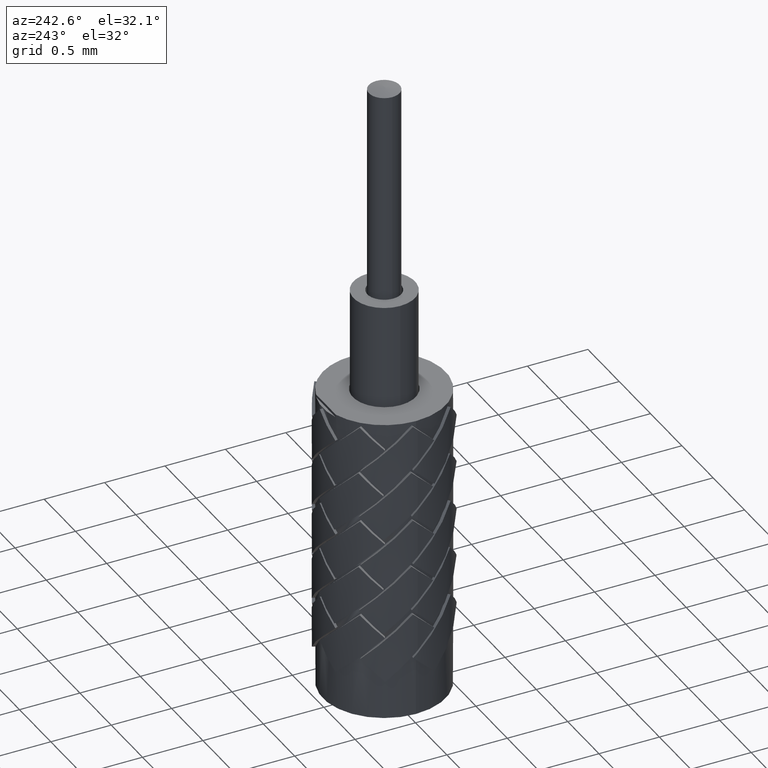
[diagram: clean part render]
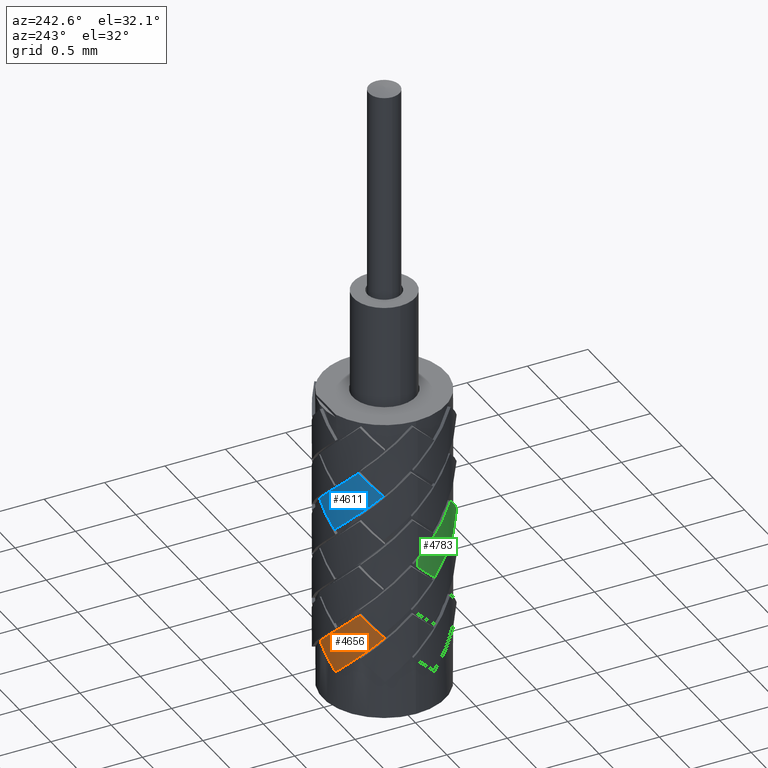
[diagram: same view with three faces highlighted in distinct colors, each labeled with its STEP entity id]
A machine part, auxiliary view with three faces highlighted in distinct colors.
Their STEP definitions:

[orange] entity #4656 — the highlighted cylindrical surface (partial cylindrical patch) has radius 0.5334 mm, axis along (0, 0, -1).
#577 = FACE_OUTER_BOUND ( 'NONE', #4589, .T. ) ;
#583 = CYLINDRICAL_SURFACE ( 'NONE', #4360, 0.02099999999999999800 ) ;
#935 = B_SPLINE_CURVE_WITH_KNOTS ( 'NONE', 3,
 ( #5617, #5668, #5489, #5478 ),
 .UNSPECIFIED., .F., .F.,
 ( 4, 4 ),
 ( 6.592916919372163500E-007, 0.9999993407083085400 ),
 .UNSPECIFIED. ) ;
#1102 = B_SPLINE_CURVE_WITH_KNOTS ( 'NONE', 3,
 ( #5851, #5492, #5888, #5835 ),
 .UNSPECIFIED., .F., .F.,
 ( 4, 4 ),
 ( 1.391942661977527500E-006, 1.000000000000000000 ),
 .UNSPECIFIED. ) ;
#1105 = B_SPLINE_CURVE_WITH_KNOTS ( 'NONE', 3,
 ( #5806, #5952, #5874, #5669 ),
 .UNSPECIFIED., .F., .F.,
 ( 4, 4 ),
 ( 6.592916918224432800E-007, 1.000000000000000000 ),
 .UNSPECIFIED. ) ;
#1313 = EDGE_CURVE ( 'NONE', #1428, #1475, #1102, .T. ) ;
#1314 = EDGE_CURVE ( 'NONE', #1402, #1428, #1105, .T. ) ;
#1333 = EDGE_CURVE ( 'NONE', #1475, #1408, #935, .T. ) ;
#1402 = VERTEX_POINT ( 'NONE', #5242 ) ;
#1408 = VERTEX_POINT ( 'NONE', #5232 ) ;
#1428 = VERTEX_POINT ( 'NONE', #5015 ) ;
#1475 = VERTEX_POINT ( 'NONE', #5406 ) ;
#1949 = DIRECTION ( 'NONE',  ( -1.000000000000000000, 0.0000000000000000000, 0.0000000000000000000 ) ) ;
#1951 = DIRECTION ( 'NONE',  ( 0.0000000000000000000, 0.0000000000000000000, -1.000000000000000000 ) ) ;
#1961 = CARTESIAN_POINT ( 'NONE',  ( 0.0000000000000000000, 0.0000000000000000000, 0.09999999999999999200 ) ) ;
#2343 = ORIENTED_EDGE ( 'NONE', *, *, #1313, .T. ) ;
#2351 = ORIENTED_EDGE ( 'NONE', *, *, #1314, .T. ) ;
#2356 = ORIENTED_EDGE ( 'NONE', *, *, #4566, .T. ) ;
#2363 = ORIENTED_EDGE ( 'NONE', *, *, #1333, .T. ) ;
#2843 = CARTESIAN_POINT ( 'NONE',  ( -0.002549479154992178300, 0.02099107324646027500, 0.01766185166687996000 ) ) ;
#2844 = CARTESIAN_POINT ( 'NONE',  ( -7.463138000601634300E-005, 0.02099986738427455500, 0.02001888411335607500 ) ) ;
#2849 = CARTESIAN_POINT ( 'NONE',  ( -0.005022125999315830300, 0.02054028360191250900, 0.01530482906292478900 ) ) ;
#2850 = CARTESIAN_POINT ( 'NONE',  ( -0.007340874858266370100, 0.01967515073170400500, 0.01294781630149058000 ) ) ;
#4360 = AXIS2_PLACEMENT_3D ( 'NONE', #1961, #1951, #1949 ) ;
#4566 = EDGE_CURVE ( 'NONE', #1408, #1402, #6784, .T. ) ;
#4589 = EDGE_LOOP ( 'NONE', ( #2363, #2356, #2351, #2343 ) ) ;
#4656 = ADVANCED_FACE ( 'NONE', ( #577 ), #583, .T. ) ;
#5015 = CARTESIAN_POINT ( 'NONE',  ( -0.01874907956769011500, 0.009458964814630876900, 0.02787674848962505600 ) ) ;
#5232 = CARTESIAN_POINT ( 'NONE',  ( -7.463138000601634300E-005, 0.02099986738427455500, 0.02001888411335607500 ) ) ;
#5242 = CARTESIAN_POINT ( 'NONE',  ( -0.007340874858266370100, 0.01967515073170400500, 0.01294781630149058000 ) ) ;
#5406 = CARTESIAN_POINT ( 'NONE',  ( -0.01431440639874261900, 0.01536547329084386900, 0.03494779661644865900 ) ) ;
#5478 = CARTESIAN_POINT ( 'NONE',  ( -7.463138000601634300E-005, 0.02099986738427455500, 0.02001888411335607500 ) ) ;
#5489 = CARTESIAN_POINT ( 'NONE',  ( -0.005299717759279109000, 0.02098129796190630800, 0.02499518828105360600 ) ) ;
#5492 = CARTESIAN_POINT ( 'NONE',  ( -0.01763433142545270400, 0.01166856195621402900, 0.03023376781273990800 ) ) ;
#5617 = CARTESIAN_POINT ( 'NONE',  ( -0.01431440639874261900, 0.01536547329084386900, 0.03494779661644865900 ) ) ;
#5668 = CARTESIAN_POINT ( 'NONE',  ( -0.01049124295994900500, 0.01892711530185286000, 0.02997149244875112500 ) ) ;
#5669 = CARTESIAN_POINT ( 'NONE',  ( -0.01874907956769011500, 0.009458964814630876900, 0.02787674848962505600 ) ) ;
#5806 = CARTESIAN_POINT ( 'NONE',  ( -0.007340874858266370100, 0.01967515073170400500, 0.01294781630149058000 ) ) ;
#5835 = CARTESIAN_POINT ( 'NONE',  ( -0.01431440639874261900, 0.01536547329084386900, 0.03494779661644865900 ) ) ;
#5851 = CARTESIAN_POINT ( 'NONE',  ( -0.01874907956769011500, 0.009458964814630876900, 0.02787674848962505600 ) ) ;
#5874 = CARTESIAN_POINT ( 'NONE',  ( -0.01639555066536298200, 0.01412401596125133400, 0.02290043119856626300 ) ) ;
#5888 = CARTESIAN_POINT ( 'NONE',  ( -0.01612524900305628200, 0.01367849873115271900, 0.03259078713585476100 ) ) ;
#5952 = CARTESIAN_POINT ( 'NONE',  ( -0.01223635481513059100, 0.01784862821990523100, 0.01792412375002842100 ) ) ;
#6784 = B_SPLINE_CURVE_WITH_KNOTS ( 'NONE', 3,
 ( #2844, #2843, #2849, #2850 ),
 .UNSPECIFIED., .F., .F.,
 ( 4, 4 ),
 ( 0.0000000000000000000, 1.000000000000000000 ),
 .UNSPECIFIED. ) ;

[blue] entity #4611 — the highlighted cylindrical surface (partial cylindrical patch) has radius 0.5334 mm, axis along (0, 0, -1).
#370 = EDGE_LOOP ( 'NONE', ( #3247, #3235, #3236, #3234 ) ) ;
#520 = FACE_OUTER_BOUND ( 'NONE', #370, .T. ) ;
#529 = CYLINDRICAL_SURFACE ( 'NONE', #1371, 0.02099999999999999800 ) ;
#973 = B_SPLINE_CURVE_WITH_KNOTS ( 'NONE', 3,
 ( #5948, #5336, #5925, #5899 ),
 .UNSPECIFIED., .F., .F.,
 ( 4, 4 ),
 ( 0.0000000000000000000, 0.9999986080573375300 ),
 .UNSPECIFIED. ) ;
#1027 = B_SPLINE_CURVE_WITH_KNOTS ( 'NONE', 3,
 ( #2419, #2423, #2414, #2411 ),
 .UNSPECIFIED., .F., .F.,
 ( 4, 4 ),
 ( 0.0000000000000000000, 1.000000000000000000 ),
 .UNSPECIFIED. ) ;
#1108 = B_SPLINE_CURVE_WITH_KNOTS ( 'NONE', 3,
 ( #5975, #5974, #5584, #5647 ),
 .UNSPECIFIED., .F., .F.,
 ( 4, 4 ),
 ( 1.391942662088818300E-006, 0.9999986080573370900 ),
 .UNSPECIFIED. ) ;
#1141 = B_SPLINE_CURVE_WITH_KNOTS ( 'NONE', 3,
 ( #5709, #5800, #5549, #5922 ),
 .UNSPECIFIED., .F., .F.,
 ( 4, 4 ),
 ( 0.0000000000000000000, 0.9999993407083082000 ),
 .UNSPECIFIED. ) ;
#1171 = DIRECTION ( 'NONE',  ( -1.000000000000000000, 0.0000000000000000000, 0.0000000000000000000 ) ) ;
#1172 = DIRECTION ( 'NONE',  ( 0.0000000000000000000, 0.0000000000000000000, -1.000000000000000000 ) ) ;
#1180 = CARTESIAN_POINT ( 'NONE',  ( 0.0000000000000000000, 0.0000000000000000000, 0.09999999999999999200 ) ) ;
#1304 = EDGE_CURVE ( 'NONE', #1490, #1489, #1027, .T. ) ;
#1325 = EDGE_CURVE ( 'NONE', #1486, #1490, #973, .T. ) ;
#1371 = AXIS2_PLACEMENT_3D ( 'NONE', #1180, #1172, #1171 ) ;
#1466 = VERTEX_POINT ( 'NONE', #5466 ) ;
#1486 = VERTEX_POINT ( 'NONE', #5404 ) ;
#1489 = VERTEX_POINT ( 'NONE', #5924 ) ;
#1490 = VERTEX_POINT ( 'NONE', #6001 ) ;
#2411 = CARTESIAN_POINT ( 'NONE',  ( -0.01855139944125968500, 0.009841015129082456400, 0.07627323738815886000 ) ) ;
#2414 = CARTESIAN_POINT ( 'NONE',  ( -0.01610280909712933800, 0.01445688360869843600, 0.07129691681625971400 ) ) ;
#2419 = CARTESIAN_POINT ( 'NONE',  ( -0.006936311913480125400, 0.01982139190467999500, 0.06134430520002431800 ) ) ;
#2423 = CARTESIAN_POINT ( 'NONE',  ( -0.01186819107908363700, 0.01809552389416798500, 0.06632060608688153400 ) ) ;
#3234 = ORIENTED_EDGE ( 'NONE', *, *, #1304, .T. ) ;
#3235 = ORIENTED_EDGE ( 'NONE', *, *, #3436, .T. ) ;
#3236 = ORIENTED_EDGE ( 'NONE', *, *, #1325, .T. ) ;
#3247 = ORIENTED_EDGE ( 'NONE', *, *, #3445, .T. ) ;
#3436 = EDGE_CURVE ( 'NONE', #1466, #1486, #1141, .T. ) ;
#3445 = EDGE_CURVE ( 'NONE', #1489, #1466, #1108, .T. ) ;
#4611 = ADVANCED_FACE ( 'NONE', ( #520 ), #529, .T. ) ;
#5336 = CARTESIAN_POINT ( 'NONE',  ( -0.002118983633466113800, 0.02103888997332837100, 0.06605834384625398900 ) ) ;
#5404 = CARTESIAN_POINT ( 'NONE',  ( 0.0003555216136105874400, 0.02099699036486552700, 0.06841537301188978200 ) ) ;
#5466 = CARTESIAN_POINT ( 'NONE',  ( -0.01399668987278623200, 0.01565543588039130000, 0.08334428551498239400 ) ) ;
#5549 = CARTESIAN_POINT ( 'NONE',  ( -0.004868852363867298200, 0.02108544960756185400, 0.07339168046042764100 ) ) ;
#5584 = CARTESIAN_POINT ( 'NONE',  ( -0.01584169554873035900, 0.01400591475194636800, 0.08098726947270787300 ) ) ;
#5647 = CARTESIAN_POINT ( 'NONE',  ( -0.01399668987278623200, 0.01565543588039130000, 0.08334428551498239400 ) ) ;
#5709 = CARTESIAN_POINT ( 'NONE',  ( -0.01399668987278623200, 0.01565543588039130000, 0.08334428551498239400 ) ) ;
#5800 = CARTESIAN_POINT ( 'NONE',  ( -0.01010136734537827800, 0.01913803245498062900, 0.07836798790896550000 ) ) ;
#5899 = CARTESIAN_POINT ( 'NONE',  ( -0.006936311913480125400, 0.01982139190467999500, 0.06134430520002431800 ) ) ;
#5922 = CARTESIAN_POINT ( 'NONE',  ( 0.0003555216136105874400, 0.02099699036486552700, 0.06841537301188978200 ) ) ;
#5924 = CARTESIAN_POINT ( 'NONE',  ( -0.01855139944125968500, 0.009841015129082456400, 0.07627323738815886000 ) ) ;
#5925 = CARTESIAN_POINT ( 'NONE',  ( -0.004600341726961976700, 0.02063884296524121400, 0.06370132452313914700 ) ) ;
#5948 = CARTESIAN_POINT ( 'NONE',  ( 0.0003555216136105874400, 0.02099699036486552700, 0.06841537301188978200 ) ) ;
#5974 = CARTESIAN_POINT ( 'NONE',  ( -0.01739162791468400200, 0.01202731243356704000, 0.07863025343043336700 ) ) ;
#5975 = CARTESIAN_POINT ( 'NONE',  ( -0.01855139944125968500, 0.009841015129082456400, 0.07627323738815886000 ) ) ;
#6001 = CARTESIAN_POINT ( 'NONE',  ( -0.006936311913480125400, 0.01982139190467999500, 0.06134430520002431800 ) ) ;

[green] entity #4783 — the highlighted cylindrical surface (partial cylindrical patch) has radius 0.5334 mm, axis along (0, 0, -1).
#174 = ORIENTED_EDGE ( 'NONE', *, *, #1836, .T. ) ;
#464 = LINE ( 'NONE', #3935, #469 ) ;
#465 = EDGE_CURVE ( 'NONE', #3313, #3387, #956, .T. ) ;
#469 = VECTOR ( 'NONE', #3936, 39.37007874015748100 ) ;
#956 = B_SPLINE_CURVE_WITH_KNOTS ( 'NONE', 3,
 ( #6532, #6568, #6580, #6542 ),
 .UNSPECIFIED., .F., .F.,
 ( 4, 4 ),
 ( 1.391942663689862400E-006, 1.000000000000000000 ),
 .UNSPECIFIED. ) ;
#957 = B_SPLINE_CURVE_WITH_KNOTS ( 'NONE', 3,
 ( #5823, #5380, #5342, #5642 ),
 .UNSPECIFIED., .F., .F.,
 ( 4, 4 ),
 ( 6.592916912404149700E-007, 1.000000000000000000 ),
 .UNSPECIFIED. ) ;
#1686 = DIRECTION ( 'NONE',  ( 0.0000000000000000000, 0.0000000000000000000, -1.000000000000000000 ) ) ;
#1805 = EDGE_LOOP ( 'NONE', ( #2571, #2561, #2461, #174, #2463 ) ) ;
#1836 = EDGE_CURVE ( 'NONE', #3386, #3313, #957, .T. ) ;
#2461 = ORIENTED_EDGE ( 'NONE', *, *, #6250, .T. ) ;
#2463 = ORIENTED_EDGE ( 'NONE', *, *, #465, .T. ) ;
#2561 = ORIENTED_EDGE ( 'NONE', *, *, #4431, .T. ) ;
#2571 = ORIENTED_EDGE ( 'NONE', *, *, #6271, .T. ) ;
#3033 = CARTESIAN_POINT ( 'NONE',  ( -0.02099985292177651200, 6.416090405543622200E-009, 0.05067400890894409300 ) ) ;
#3034 = CARTESIAN_POINT ( 'NONE',  ( -0.02100000000236012400, -0.002004173164255159500, 0.04876527919989318000 ) ) ;
#3039 = CARTESIAN_POINT ( 'NONE',  ( -0.02071114825451870300, -0.004008122771422115700, 0.04685654282943140700 ) ) ;
#3040 = CARTESIAN_POINT ( 'NONE',  ( -0.02014513716082050000, -0.005930720763257105500, 0.04494781630149059100 ) ) ;
#3090 = CARTESIAN_POINT ( 'NONE',  ( -0.01633954362659679700, -0.01319163803606436200, 0.06694779661644866000 ) ) ;
#3098 = CARTESIAN_POINT ( 'NONE',  ( -0.01932614457686224200, -0.009492347895697778000, 0.06241977524093729500 ) ) ;
#3103 = CARTESIAN_POINT ( 'NONE',  ( -0.02100000012003794300, -0.004754421914086528700, 0.05789175386542592300 ) ) ;
#3104 = CARTESIAN_POINT ( 'NONE',  ( -0.02099938458704712200, 8.602827485721580100E-008, 0.05336382120126304000 ) ) ;
#3313 = VERTEX_POINT ( 'NONE', #5702 ) ;
#3386 = VERTEX_POINT ( 'NONE', #5110 ) ;
#3387 = VERTEX_POINT ( 'NONE', #5672 ) ;
#3789 = AXIS2_PLACEMENT_3D ( 'NONE', #4356, #1686, #6266 ) ;
#3935 = CARTESIAN_POINT ( 'NONE',  ( -0.02099999999999999800, 0.0000000000000000000, 0.09999999999999999200 ) ) ;
#3936 = DIRECTION ( 'NONE',  ( 0.0000000000000000000, 0.0000000000000000000, -1.000000000000000000 ) ) ;
#4356 = CARTESIAN_POINT ( 'NONE',  ( 0.0000000000000000000, 0.0000000000000000000, 0.09999999999999999200 ) ) ;
#4431 = EDGE_CURVE ( 'NONE', #6045, #6003, #464, .T. ) ;
#4783 = ADVANCED_FACE ( 'NONE', ( #6191 ), #6200, .T. ) ;
#5110 = CARTESIAN_POINT ( 'NONE',  ( -0.02014513716082050000, -0.005930720763257105500, 0.04494781630149059100 ) ) ;
#5342 = CARTESIAN_POINT ( 'NONE',  ( -0.01524841048593294000, -0.01535538622590318400, 0.05490043119856626700 ) ) ;
#5380 = CARTESIAN_POINT ( 'NONE',  ( -0.01866948266535076500, -0.01094314056851753200, 0.04992412375002842200 ) ) ;
#5642 = CARTESIAN_POINT ( 'NONE',  ( -0.01076152740352226800, -0.01803301217055096700, 0.05987674848962506300 ) ) ;
#5672 = CARTESIAN_POINT ( 'NONE',  ( -0.01633954362659679700, -0.01319163803606436200, 0.06694779661644866000 ) ) ;
#5702 = CARTESIAN_POINT ( 'NONE',  ( -0.01076152740352226800, -0.01803301217055096700, 0.05987674848962506300 ) ) ;
#5823 = CARTESIAN_POINT ( 'NONE',  ( -0.02014513716082050000, -0.005930720763257105500, 0.04494781630149059100 ) ) ;
#6003 = VERTEX_POINT ( 'NONE', #6320 ) ;
#6045 = VERTEX_POINT ( 'NONE', #6369 ) ;
#6191 = FACE_OUTER_BOUND ( 'NONE', #1805, .T. ) ;
#6200 = CYLINDRICAL_SURFACE ( 'NONE', #3789, 0.02099999999999999800 ) ;
#6250 = EDGE_CURVE ( 'NONE', #6003, #3386, #6693, .T. ) ;
#6266 = DIRECTION ( 'NONE',  ( -1.000000000000000000, 0.0000000000000000000, 0.0000000000000000000 ) ) ;
#6271 = EDGE_CURVE ( 'NONE', #3387, #6045, #6669, .T. ) ;
#6320 = CARTESIAN_POINT ( 'NONE',  ( -0.02099985292177651200, 6.416090405543622200E-009, 0.05067400890894409300 ) ) ;
#6369 = CARTESIAN_POINT ( 'NONE',  ( -0.02099938458704712200, 8.602827485721580100E-008, 0.05336382120126304000 ) ) ;
#6532 = CARTESIAN_POINT ( 'NONE',  ( -0.01076152740352226800, -0.01803301217055096700, 0.05987674848962506300 ) ) ;
#6542 = CARTESIAN_POINT ( 'NONE',  ( -0.01633954362659679700, -0.01319163803606436200, 0.06694779661644866000 ) ) ;
#6568 = CARTESIAN_POINT ( 'NONE',  ( -0.01288673531051995200, -0.01676475576873437100, 0.06223376781273991200 ) ) ;
#6580 = CARTESIAN_POINT ( 'NONE',  ( -0.01478488889926613700, -0.01511727631503344300, 0.06459078713585476900 ) ) ;
#6669 = B_SPLINE_CURVE_WITH_KNOTS ( 'NONE', 3,
 ( #3090, #3098, #3103, #3104 ),
 .UNSPECIFIED., .F., .F.,
 ( 4, 4 ),
 ( 6.592916912566457000E-007, 0.9099159804511465200 ),
 .UNSPECIFIED. ) ;
#6693 = B_SPLINE_CURVE_WITH_KNOTS ( 'NONE', 3,
 ( #3033, #3034, #3039, #3040 ),
 .UNSPECIFIED., .F., .F.,
 ( 4, 4 ),
 ( 0.1901917413694510200, 1.000000000000000000 ),
 .UNSPECIFIED. ) ;